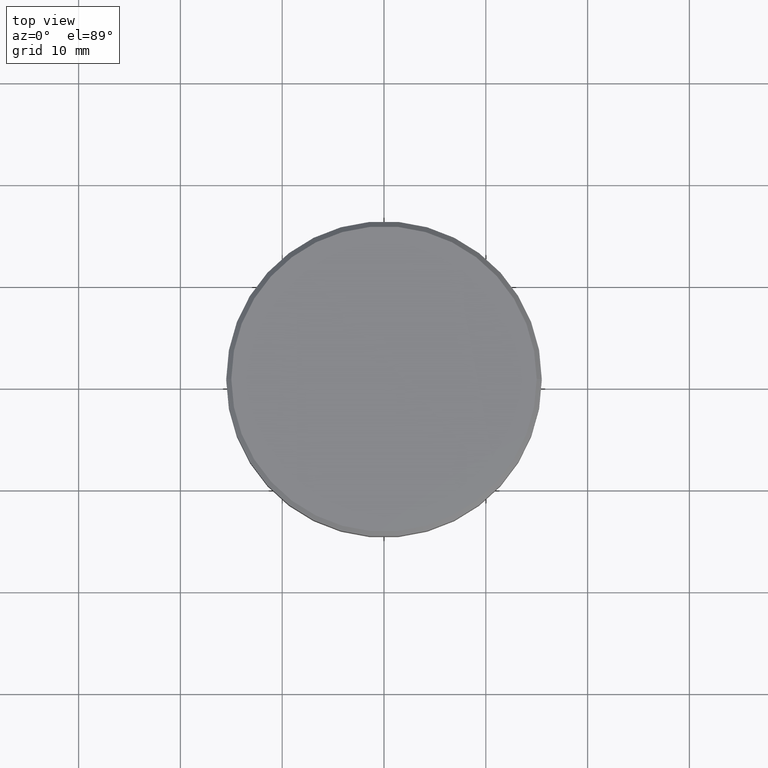
[diagram: clean part render]
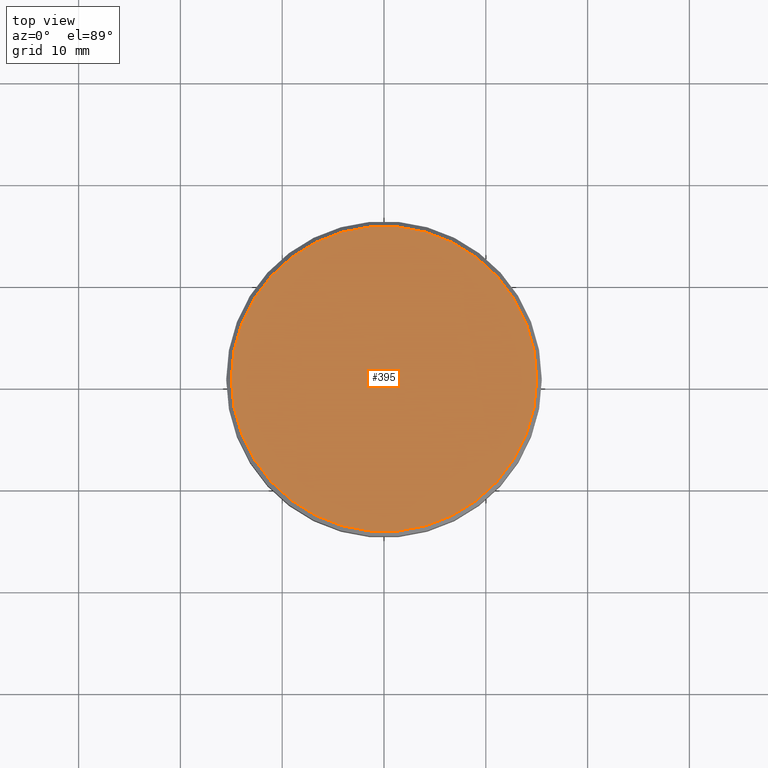
[diagram: same view with one face highlighted and labeled with its STEP entity id]
A machine part, top view. The second image highlights one B-rep face of the part: STEP entity #395.
In plain terms, the highlighted planar face has unit normal (0, -0, 1).
Its self-contained STEP definition (entity closure, byte-faithful):
#10 = CARTESIAN_POINT ( 'NONE',  ( 0.000000000000000000, 0.000000000000000000, 0.000000000000000000 ) ) ;
#21 = AXIS2_PLACEMENT_3D ( 'NONE', #1054, #516, #875 ) ;
#50 = ORIENTED_EDGE ( 'NONE', *, *, #974, .T. ) ;
#80 = CIRCLE ( 'NONE', #768, 15.00000000000001421 ) ;
#82 = DIRECTION ( 'NONE',  ( 1.000000000000000000, 0.000000000000000000, 0.000000000000000000 ) ) ;
#127 = VERTEX_POINT ( 'NONE', #895 ) ;
#282 = DIRECTION ( 'NONE',  ( 1.000000000000000000, 0.000000000000000000, 0.000000000000000000 ) ) ;
#324 = PLANE ( 'NONE',  #21 ) ;
#348 = ORIENTED_EDGE ( 'NONE', *, *, #744, .T. ) ;
#366 = AXIS2_PLACEMENT_3D ( 'NONE', #455, #740, #82 ) ;
#369 = DIRECTION ( 'NONE',  ( -0.000000000000000000, -0.000000000000000000, 1.000000000000000000 ) ) ;
#395 = ADVANCED_FACE ( 'NONE', ( #1145 ), #324, .T. ) ;
#455 = CARTESIAN_POINT ( 'NONE',  ( 0.000000000000000000, 0.000000000000000000, 0.000000000000000000 ) ) ;
#516 = DIRECTION ( 'NONE',  ( 0.000000000000000000, -0.000000000000000000, 1.000000000000000000 ) ) ;
#628 = EDGE_LOOP ( 'NONE', ( #348, #50 ) ) ;
#740 = DIRECTION ( 'NONE',  ( -0.000000000000000000, -0.000000000000000000, 1.000000000000000000 ) ) ;
#744 = EDGE_CURVE ( 'NONE', #127, #1168, #80, .T. ) ;
#768 = AXIS2_PLACEMENT_3D ( 'NONE', #10, #369, #282 ) ;
#782 = CIRCLE ( 'NONE', #366, 15.00000000000001421 ) ;
#839 = CARTESIAN_POINT ( 'NONE',  ( 15.00000000000001421, 1.867586368699714559E-15, 0.000000000000000000 ) ) ;
#875 = DIRECTION ( 'NONE',  ( 1.000000000000000000, 0.000000000000000000, 0.000000000000000000 ) ) ;
#895 = CARTESIAN_POINT ( 'NONE',  ( -15.00000000000001421, 0.000000000000000000, 0.000000000000000000 ) ) ;
#974 = EDGE_CURVE ( 'NONE', #1168, #127, #782, .T. ) ;
#1054 = CARTESIAN_POINT ( 'NONE',  ( 0.000000000000000000, 0.000000000000000000, 0.000000000000000000 ) ) ;
#1145 = FACE_OUTER_BOUND ( 'NONE', #628, .T. ) ;
#1168 = VERTEX_POINT ( 'NONE', #839 ) ;